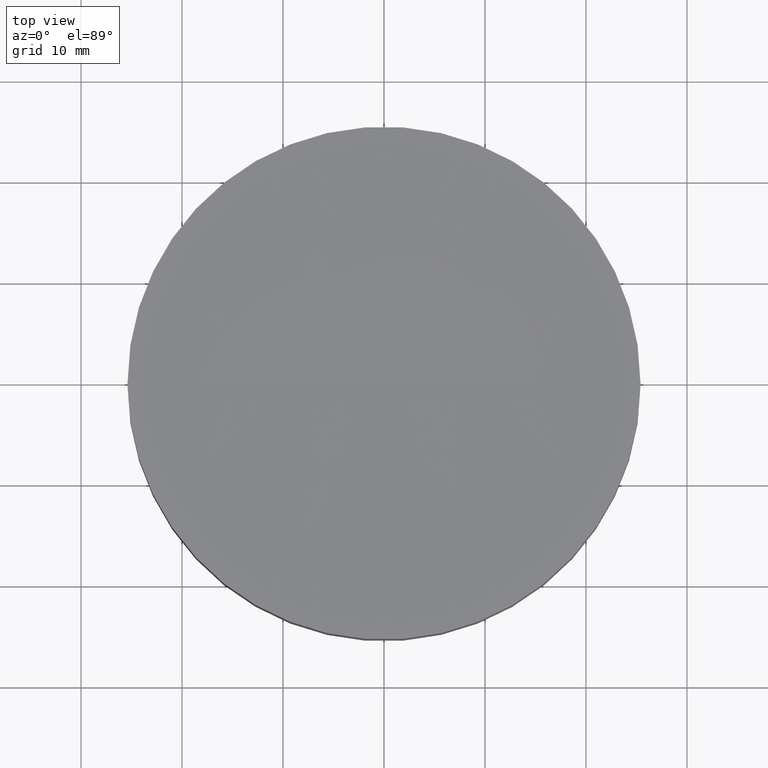
[diagram: clean part render]
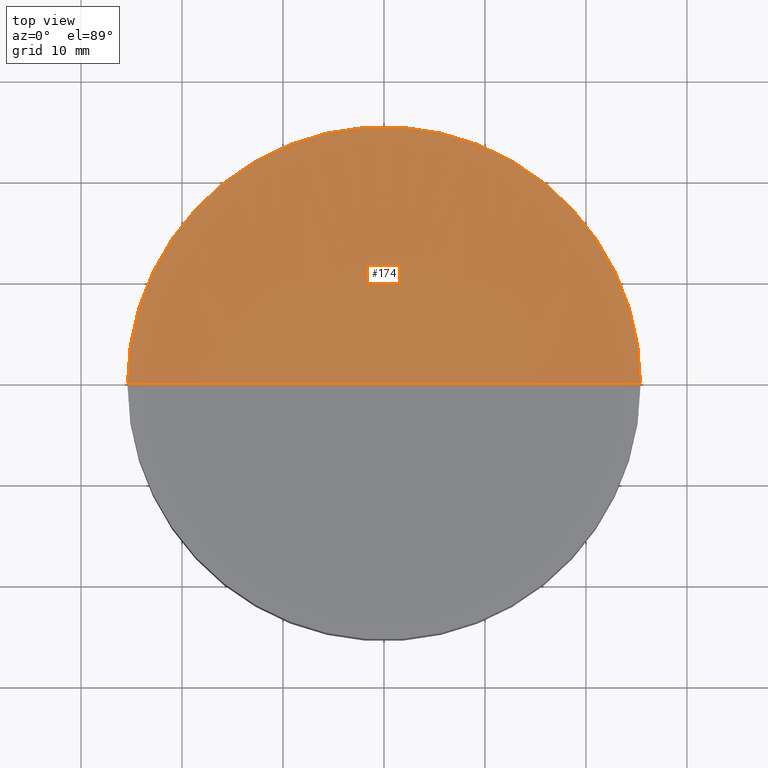
[diagram: same view with one face highlighted and labeled with its STEP entity id]
A machine part, top view. The second image highlights one B-rep face of the part: STEP entity #174.
In plain terms, the highlighted spherical surface has radius 3000 mm.
Its self-contained STEP definition (entity closure, byte-faithful):
#9 = CIRCLE ( 'NONE', #151, 2999.999999999999091 ) ;
#18 = CARTESIAN_POINT ( 'NONE',  ( -25.39999999995439239, 0.000000000000000000, 9.999999999999786837 ) ) ;
#19 = DIRECTION ( 'NONE',  ( 0.000000000000000000, 1.000000000000000000, -0.000000000000000000 ) ) ;
#43 = VERTEX_POINT ( 'NONE', #89 ) ;
#45 = ORIENTED_EDGE ( 'NONE', *, *, #144, .T. ) ;
#47 = DIRECTION ( 'NONE',  ( 1.000000000000000000, 0.000000000000000000, 0.000000000000000000 ) ) ;
#48 = DIRECTION ( 'NONE',  ( 0.000000000000000000, 0.000000000000000000, 1.000000000000000000 ) ) ;
#51 = DIRECTION ( 'NONE',  ( 0.000000000000000000, -1.000000000000000000, -0.000000000000000000 ) ) ;
#63 = CARTESIAN_POINT ( 'NONE',  ( 3.712308238590367182E-13, 0.000000000000000000, 3009.892471406266850 ) ) ;
#68 = FACE_OUTER_BOUND ( 'NONE', #74, .T. ) ;
#74 = EDGE_LOOP ( 'NONE', ( #183, #45, #196 ) ) ;
#75 = EDGE_CURVE ( 'NONE', #110, #43, #85, .T. ) ;
#82 = CARTESIAN_POINT ( 'NONE',  ( 5.549278437311396424E-13, 0.000000000000000000, 9.892471406267144829 ) ) ;
#85 = CIRCLE ( 'NONE', #108, 25.39999999995476543 ) ;
#89 = CARTESIAN_POINT ( 'NONE',  ( 25.39999999995513491, 3.110602869831530446E-15, 9.999999999999786837 ) ) ;
#95 = CARTESIAN_POINT ( 'NONE',  ( 3.712308238590367182E-13, 0.000000000000000000, 3009.892471406266850 ) ) ;
#97 = DIRECTION ( 'NONE',  ( -0.000000000000000000, -0.000000000000000000, -1.000000000000000000 ) ) ;
#108 = AXIS2_PLACEMENT_3D ( 'NONE', #143, #97, #169 ) ;
#110 = VERTEX_POINT ( 'NONE', #18 ) ;
#114 = DIRECTION ( 'NONE',  ( 1.000000000000000000, 1.224646799147353207E-16, 0.000000000000000000 ) ) ;
#117 = CIRCLE ( 'NONE', #138, 2999.999999999999545 ) ;
#138 = AXIS2_PLACEMENT_3D ( 'NONE', #63, #187, #114 ) ;
#140 = EDGE_CURVE ( 'NONE', #43, #182, #9, .T. ) ;
#143 = CARTESIAN_POINT ( 'NONE',  ( 3.712308238590367182E-13, 0.000000000000000000, 9.999999999999786837 ) ) ;
#144 = EDGE_CURVE ( 'NONE', #110, #182, #117, .T. ) ;
#146 = SPHERICAL_SURFACE ( 'NONE', #189, 2999.999999999999545 ) ;
#151 = AXIS2_PLACEMENT_3D ( 'NONE', #95, #19, #48 ) ;
#169 = DIRECTION ( 'NONE',  ( 1.000000000000000000, 0.000000000000000000, 0.000000000000000000 ) ) ;
#174 = ADVANCED_FACE ( 'NONE', ( #68 ), #146, .F. ) ;
#182 = VERTEX_POINT ( 'NONE', #82 ) ;
#183 = ORIENTED_EDGE ( 'NONE', *, *, #75, .F. ) ;
#185 = CARTESIAN_POINT ( 'NONE',  ( 3.712308238590367182E-13, 0.000000000000000000, 3009.892471406266850 ) ) ;
#187 = DIRECTION ( 'NONE',  ( 1.224646799147353207E-16, -1.000000000000000000, 0.000000000000000000 ) ) ;
#189 = AXIS2_PLACEMENT_3D ( 'NONE', #185, #51, #47 ) ;
#196 = ORIENTED_EDGE ( 'NONE', *, *, #140, .F. ) ;